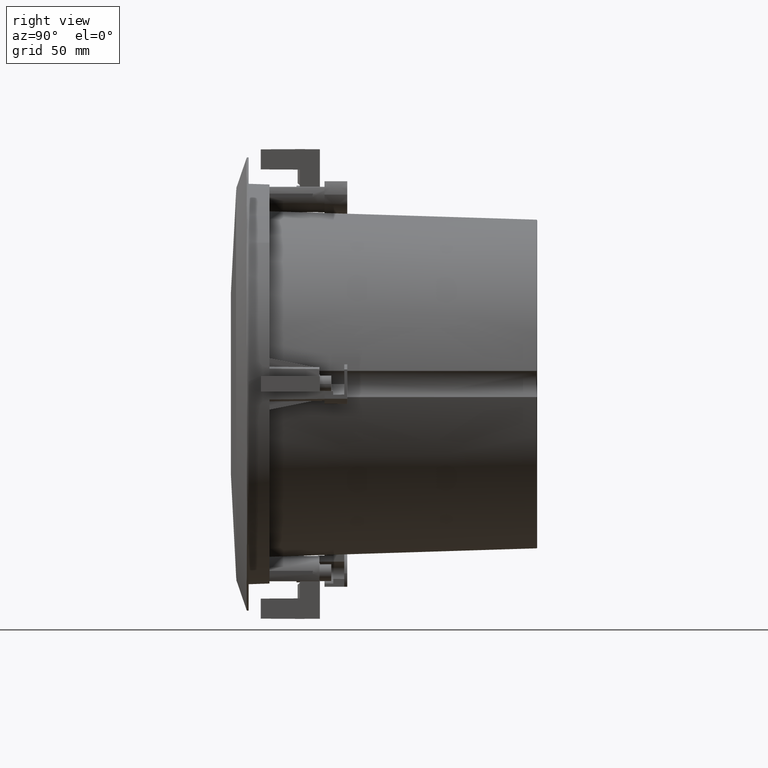
[diagram: clean part render]
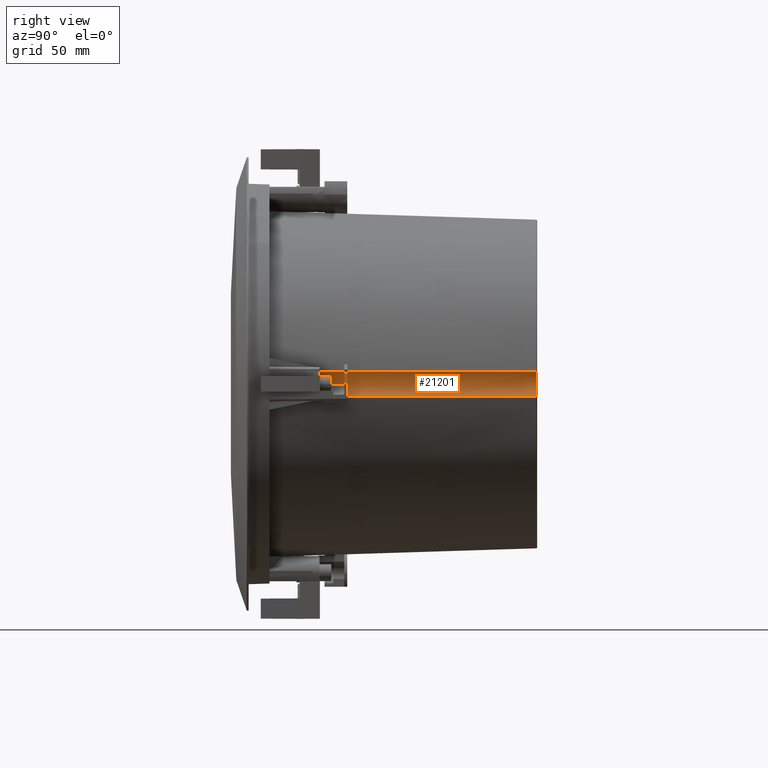
[diagram: same view with one face highlighted and labeled with its STEP entity id]
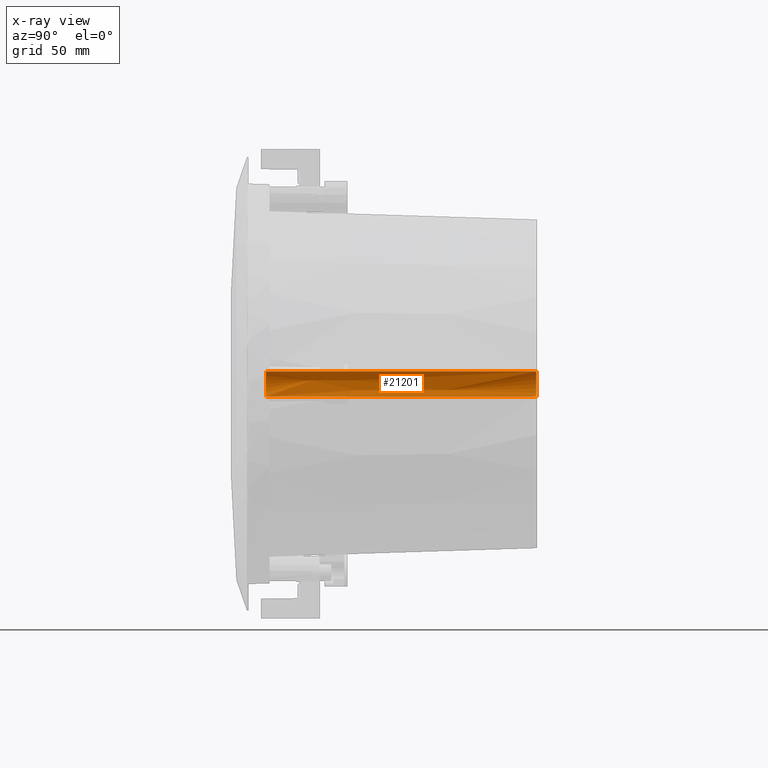
[diagram: x-ray of the same camera — body ghosted, the highlighted face saturated]
A machine part, right view. The second image highlights one B-rep face of the part: STEP entity #21201.
The next image is the same camera in x-ray: the body ghosted, the highlighted face saturated — about 0% of this face is hidden behind the body in this view.
In plain terms, the highlighted face is a freeform B-spline surface patch.
Its self-contained STEP definition (entity closure, byte-faithful):
#496 = CARTESIAN_POINT ( 'NONE',  ( 91.61020033156216869, 152.7154065100329774, 2.261585016979329232 ) ) ;
#604 = B_SPLINE_CURVE_WITH_KNOTS ( 'NONE', 3,
 ( #19908, #8225, #21805, #19688, #4255, #5992, #18011, #21694, #9489, #9700, #20126, #4723, #14866 ),
 .UNSPECIFIED., .F., .F.,
 ( 4, 3, 3, 3, 4 ),
 ( 0.0001665084307229406301, 0.02255475199520160304, 0.06766425598571328137, 0.1112266042839354097, 0.1547889525827407520 ),
 .UNSPECIFIED. ) ;
#662 = CARTESIAN_POINT ( 'NONE',  ( 97.67308154232000561, 49.25406530410000983, -7.738291418072973826 ) ) ;
#708 = CARTESIAN_POINT ( 'NONE',  ( 91.84352960335030502, 152.7150806227148792, 3.211551464318024074 ) ) ;
#779 = CARTESIAN_POINT ( 'NONE',  ( 92.80247191255000416, 101.9503593984900078, 2.979383873791024762 ) ) ;
#817 = CARTESIAN_POINT ( 'NONE',  ( 91.40548712608965332, 152.7156864829483709, -0.6566585150195035636 ) ) ;
#938 = CARTESIAN_POINT ( 'NONE',  ( 92.55485975404567967, 152.7140838114911219, -5.031309834028076189 ) ) ;
#1020 = CARTESIAN_POINT ( 'NONE',  ( 97.67308154232000561, 49.25406530410000983, 7.738291418073024452 ) ) ;
#1136 = CARTESIAN_POINT ( 'NONE',  ( 98.21988781266999524, -3.578109784699995188, 6.530533994243025830 ) ) ;
#1353 = CARTESIAN_POINT ( 'NONE',  ( 96.56066845319999459, 49.21910631440000117, 6.530533994243025830 ) ) ;
#1379 = CARTESIAN_POINT ( 'NONE',  ( 98.50015031252893039, -1.999999999999998224, -6.791984068913819783 ) ) ;
#1409 = B_SPLINE_CURVE_WITH_KNOTS ( 'NONE', 3,
 ( #5709, #14369, #13019, #2625, #938, #16152, #14272, #17612, #4099, #2206, #9096, #817, #18066, #16263, #21427, #496, #10891, #708, #7431, #19425, #21095, #5928, #12564, #12896 ),
 .UNSPECIFIED., .F., .F.,
 ( 4, 2, 2, 2, 2, 2, 2, 2, 2, 2, 2, 4 ),
 ( 0.0000000000000000000, 0.001955157051963219653, 0.002932735577944819289, 0.003910314103926418490, 0.005865471155889617760, 0.006843049681871213492, 0.007820628207852807490, 0.009775785259815998954, 0.01075336378579759035, 0.01173094231177918521, 0.01368609936374238188, 0.01564125641570557682 ),
 .UNSPECIFIED. ) ;
#2206 = CARTESIAN_POINT ( 'NONE',  ( 91.50186528906206718, 152.7155554708455156, -1.627899822645950234 ) ) ;
#2389 = VERTEX_POINT ( 'NONE', #10145 ) ;
#2406 = CARTESIAN_POINT ( 'NONE',  ( 98.09784348374836327, 21.78334706653837571, 7.234101782113029344 ) ) ;
#2475 = CARTESIAN_POINT ( 'NONE',  ( 96.12091063152000459, -3.644072799999981349, 2.979383873791025206 ) ) ;
#2509 = CARTESIAN_POINT ( 'NONE',  ( 98.40910030451733803, 11.90465003566235147, 7.235084474806017241 ) ) ;
#2526 = CARTESIAN_POINT ( 'NONE',  ( 97.81712472956719751, -1.999999999999994449, -5.792756148791532667 ) ) ;
#2618 = CARTESIAN_POINT ( 'NONE',  ( 98.84195815477887948, -1.833574155497091906, 7.236445405639725159 ) ) ;
#2620 = EDGE_CURVE ( 'NONE', #12341, #4914, #9169, .T. ) ;
#2625 = CARTESIAN_POINT ( 'NONE',  ( 92.70400841356688204, 152.7138793473495184, -5.322021540651709515 ) ) ;
#2632 = CARTESIAN_POINT ( 'NONE',  ( 98.50015031252895881, -2.000000000000085265, 6.791984068913894390 ) ) ;
#2637 = CARTESIAN_POINT ( 'NONE',  ( 93.97205915169993773, 152.7121603797918112, -7.220450181294416403 ) ) ;
#2697 = CARTESIAN_POINT ( 'NONE',  ( 94.90144909370999926, 102.0163224137999975, -6.530533994242975204 ) ) ;
#2774 = ORIENTED_EDGE ( 'NONE', *, *, #21540, .T. ) ;
#4087 = CARTESIAN_POINT ( 'NONE',  ( 96.56066715394007360, 70.56789930491493124, 7.229149573033296861 ) ) ;
#4099 = CARTESIAN_POINT ( 'NONE',  ( 91.66558561309022934, 152.7153303457702691, -2.584280068617713866 ) ) ;
#4166 = ORIENTED_EDGE ( 'NONE', *, *, #12050, .F. ) ;
#4255 = CARTESIAN_POINT ( 'NONE',  ( 97.66336506333180978, 35.57260761802165661, -7.232719921373375271 ) ) ;
#4319 = CARTESIAN_POINT ( 'NONE',  ( 97.25495336390214618, -2.000000000000003553, 4.716745304721277954 ) ) ;
#4381 = CARTESIAN_POINT ( 'NONE',  ( 99.33230090179999650, -3.543150795000005182, -7.738291418072973826 ) ) ;
#4521 = CARTESIAN_POINT ( 'NONE',  ( 99.33230090179999650, -3.543150795000005182, 7.738291418073024452 ) ) ;
#4682 = EDGE_CURVE ( 'NONE', #2389, #17960, #18431, .T. ) ;
#4723 = CARTESIAN_POINT ( 'NONE',  ( 94.42945540695139073, 138.1985833456275827, -7.222026153415281868 ) ) ;
#4780 = CARTESIAN_POINT ( 'NONE',  ( 98.73511597633478232, -1.934916668850658272, -7.100934499089745167 ) ) ;
#4914 = VERTEX_POINT ( 'NONE', #17814 ) ;
#5709 = CARTESIAN_POINT ( 'NONE',  ( 93.97205915169993773, 152.7121603797918112, -7.220450181294416403 ) ) ;
#5928 = CARTESIAN_POINT ( 'NONE',  ( 93.18483717688505408, 152.7132242608394108, 6.169193321148541465 ) ) ;
#5992 = CARTESIAN_POINT ( 'NONE',  ( 97.18980920213068941, 50.60164999530178420, -7.231196318516961874 ) ) ;
#6031 = CARTESIAN_POINT ( 'NONE',  ( 94.68250710069365539, 130.1686004264556971, 7.222880669290041133 ) ) ;
#6049 = CARTESIAN_POINT ( 'NONE',  ( 96.25368533407322502, -2.000000000000002665, 0.6106886100770010373 ) ) ;
#6108 = CARTESIAN_POINT ( 'NONE',  ( 98.21988781266999524, -3.578109784699995188, -6.530533994242975204 ) ) ;
#6208 = VERTEX_POINT ( 'NONE', #8104 ) ;
#6225 = CARTESIAN_POINT ( 'NONE',  ( 96.12091063152000459, -3.644072799999981349, -2.979383873790975024 ) ) ;
#6437 = VERTEX_POINT ( 'NONE', #2637 ) ;
#6536 = CARTESIAN_POINT ( 'NONE',  ( 98.84195815477896474, -1.833574155497175173, -7.236445405639683415 ) ) ;
#6940 = ORIENTED_EDGE ( 'NONE', *, *, #2620, .T. ) ;
#7431 = CARTESIAN_POINT ( 'NONE',  ( 91.94092968283385403, 152.7149413132343341, 3.527012995620613545 ) ) ;
#7518 = CARTESIAN_POINT ( 'NONE',  ( 97.78657966677532443, 31.66204387610375193, 7.233110224043736380 ) ) ;
#7688 = CARTESIAN_POINT ( 'NONE',  ( 91.14325255306999907, 154.7475754975220070, 2.979383873791024318 ) ) ;
#7737 = CARTESIAN_POINT ( 'NONE',  ( 96.31361733670034653, -2.000000000000000444, -1.216504831620765614 ) ) ;
#7816 = CARTESIAN_POINT ( 'NONE',  ( 96.01386218284000051, 102.0512814034899947, 7.738291418073024452 ) ) ;
#7953 = ORIENTED_EDGE ( 'NONE', *, *, #15538, .T. ) ;
#8104 = CARTESIAN_POINT ( 'NONE',  ( 98.50015031252895881, -2.000000000000085265, 6.791984068913894390 ) ) ;
#8225 = CARTESIAN_POINT ( 'NONE',  ( 98.60694427350189528, 5.625472263374204474, -7.235709577892789568 ) ) ;
#8628 = CARTESIAN_POINT ( 'NONE',  ( 98.61879915482280978, -1.987893263490174700, 6.950150110547823168 ) ) ;
#9096 = CARTESIAN_POINT ( 'NONE',  ( 91.46070347580045734, 152.7156114962589868, -1.306146730436927417 ) ) ;
#9169 = B_SPLINE_CURVE_WITH_KNOTS ( 'NONE', 3,
 ( #10997, #18054, #13119, #6031, #16142, #9518, #14461, #4087, #9747, #19531, #7518, #2406, #2509, #9633, #9421, #2618 ),
 .UNSPECIFIED., .F., .F.,
 ( 4, 3, 3, 3, 3, 4 ),
 ( 0.0000000000000000000, 0.02255475199520405247, 0.06766425598573366784, 0.1112266042839754610, 0.1408774024388060597, 0.1546224441519889747 ),
 .UNSPECIFIED. ) ;
#9421 = CARTESIAN_POINT ( 'NONE',  ( 98.69767369619560782, 2.745833955402894766, 7.235993651439066809 ) ) ;
#9424 = ORIENTED_EDGE ( 'NONE', *, *, #21030, .T. ) ;
#9436 = CARTESIAN_POINT ( 'NONE',  ( 97.02847832391098848, -2.000000000000002665, -4.153033228652599718 ) ) ;
#9489 = CARTESIAN_POINT ( 'NONE',  ( 95.80155983029986544, 94.65784957379511866, -7.226646722820636803 ) ) ;
#9518 = CARTESIAN_POINT ( 'NONE',  ( 95.62973490745297056, 100.1105193452269049, 7.226075344383867893 ) ) ;
#9540 = CARTESIAN_POINT ( 'NONE',  ( 96.25358773396848733, -2.000000000000002220, -0.3034862045923818474 ) ) ;
#9633 = CARTESIAN_POINT ( 'NONE',  ( 98.55338775211468771, 7.325242019314006647, 7.235540015732296659 ) ) ;
#9700 = CARTESIAN_POINT ( 'NONE',  ( 95.34419717870008526, 109.1714276713287290, -7.225113512980952279 ) ) ;
#9747 = CARTESIAN_POINT ( 'NONE',  ( 97.01799566112921980, 56.05432012686691934, 7.230639395304131689 ) ) ;
#10145 = CARTESIAN_POINT ( 'NONE',  ( 98.50015031252893039, -1.999999999999998224, -6.791984068913819783 ) ) ;
#10196 = CARTESIAN_POINT ( 'NONE',  ( 98.79228400043820102, -1.894014590332834258, 7.173605518183893359 ) ) ;
#10891 = CARTESIAN_POINT ( 'NONE',  ( 91.67849112168364911, 152.7153120402369098, 2.579547459051716451 ) ) ;
#10997 = CARTESIAN_POINT ( 'NONE',  ( 93.97205915169993773, 152.7121603797918112, 7.220450181294447489 ) ) ;
#11070 = CARTESIAN_POINT ( 'NONE',  ( 94.35464282335999542, 154.8484975025249923, -7.738291418072973826 ) ) ;
#11220 = CARTESIAN_POINT ( 'NONE',  ( 98.13535155203022953, -2.000000000000002665, 6.300612802584741878 ) ) ;
#11333 = CARTESIAN_POINT ( 'NONE',  ( 96.34940250375261428, -1.999999999999997780, -1.517224606802967113 ) ) ;
#11435 = CARTESIAN_POINT ( 'NONE',  ( 96.64546701865899081, -1.999999999999999556, 2.995492485011314709 ) ) ;
#11998 = CARTESIAN_POINT ( 'NONE',  ( 98.50015031252895881, -2.000000000000085265, 6.791984068913894390 ) ) ;
#12050 = EDGE_CURVE ( 'NONE', #2389, #6208, #20937, .T. ) ;
#12341 = VERTEX_POINT ( 'NONE', #18808 ) ;
#12564 = CARTESIAN_POINT ( 'NONE',  ( 93.55573424116423098, 152.7127244389219527, 6.711350121103005328 ) ) ;
#12896 = CARTESIAN_POINT ( 'NONE',  ( 93.97205915169993773, 152.7121603797918112, 7.220450181294447489 ) ) ;
#12900 = CARTESIAN_POINT ( 'NONE',  ( 96.30135731425872336, -1.999999999999997780, 1.213694500837114498 ) ) ;
#12974 = B_SPLINE_SURFACE_WITH_KNOTS ( 'NONE', 3, 3, ( 
 ( #4381, #662, #14757, #11070 ),
 ( #6108, #19800, #2697, #17903 ),
 ( #6225, #21273, #13092, #19920 ),
 ( #2475, #16221, #779, #7688 ),
 ( #1136, #1353, #13216, #19817 ),
 ( #4521, #1020, #7816, #18489 ) ),
 .UNSPECIFIED., .F., .F., .F.,
 ( 4, 1, 1, 4 ),
 ( 4, 4 ),
 ( 0.0000000000000000000, 0.2895366929247100152, 0.7104633070752900403, 1.000000000000000000 ),
 ( 0.0000000000000000000, 1.000000000000000000 ),
 .UNSPECIFIED. ) ;
#13019 = CARTESIAN_POINT ( 'NONE',  ( 93.18683004423230898, 152.7132215506434250, -6.172592179361067188 ) ) ;
#13029 = CARTESIAN_POINT ( 'NONE',  ( 97.81382768245995862, -2.000000000000003997, 5.787047042495831128 ) ) ;
#13092 = CARTESIAN_POINT ( 'NONE',  ( 92.80247191255000416, 101.9503593984900078, -2.979383873790975468 ) ) ;
#13119 = CARTESIAN_POINT ( 'NONE',  ( 94.44569564927066097, 137.6831205543294629, 7.222076274675029772 ) ) ;
#13128 = CARTESIAN_POINT ( 'NONE',  ( 98.55965239024345692, -2.000000000000000888, -6.872131301968617656 ) ) ;
#13216 = CARTESIAN_POINT ( 'NONE',  ( 94.90144909370999926, 102.0163224137999975, 6.530533994243025830 ) ) ;
#13243 = CARTESIAN_POINT ( 'NONE',  ( 96.63351597286846584, -1.999999999999999112, -2.999592067194110978 ) ) ;
#14272 = CARTESIAN_POINT ( 'NONE',  ( 92.15670663614751845, 152.7146363208628657, -4.130082909688709947 ) ) ;
#14328 = CARTESIAN_POINT ( 'NONE',  ( 98.84195815477887948, -1.833574155497091906, 7.236445405639725159 ) ) ;
#14369 = CARTESIAN_POINT ( 'NONE',  ( 93.55552934899471040, 152.7127247165207677, -6.711099570119332114 ) ) ;
#14461 = CARTESIAN_POINT ( 'NONE',  ( 96.10332253197962871, 85.08147797301039361, 7.227639278439036197 ) ) ;
#14539 = FACE_OUTER_BOUND ( 'NONE', #15389, .T. ) ;
#14595 = CARTESIAN_POINT ( 'NONE',  ( 96.26568579317962815, -2.000000000000000888, -0.6102939505696712841 ) ) ;
#14757 = CARTESIAN_POINT ( 'NONE',  ( 96.01386218284000051, 102.0512814034899947, -7.738291418072973826 ) ) ;
#14804 = CARTESIAN_POINT ( 'NONE',  ( 98.79227359387421359, -1.894027252395562577, -7.173592353444174563 ) ) ;
#14866 = CARTESIAN_POINT ( 'NONE',  ( 93.97205915169993773, 152.7121603797918112, -7.220450181294416403 ) ) ;
#15252 = CARTESIAN_POINT ( 'NONE',  ( 98.61870412798201357, -1.987875033190595220, -6.950021680120757495 ) ) ;
#15389 = EDGE_LOOP ( 'NONE', ( #4166, #20981, #2774, #9424, #6940, #7953 ) ) ;
#15487 = CARTESIAN_POINT ( 'NONE',  ( 98.55963534278346572, -1.999999999999892530, 6.872108339631928686 ) ) ;
#15538 = EDGE_CURVE ( 'NONE', #4914, #6208, #16834, .T. ) ;
#16142 = CARTESIAN_POINT ( 'NONE',  ( 95.15613000354029793, 115.1395601706879859, 7.224489458520065632 ) ) ;
#16152 = CARTESIAN_POINT ( 'NONE',  ( 92.28096815811639431, 152.7144626206500106, -4.435009048636267437 ) ) ;
#16221 = CARTESIAN_POINT ( 'NONE',  ( 94.46169127203999949, 49.15314329910000168, 2.979383873791024762 ) ) ;
#16263 = CARTESIAN_POINT ( 'NONE',  ( 91.39148995573999912, 152.7157053705159626, 0.6548608234850543663 ) ) ;
#16271 = CARTESIAN_POINT ( 'NONE',  ( 96.49192171967723652, -1.999999999999998224, -2.412286373329557865 ) ) ;
#16602 = CARTESIAN_POINT ( 'NONE',  ( 96.72951088223101124, -2.000000000000003553, 3.290064076464328746 ) ) ;
#16834 = B_SPLINE_CURVE_WITH_KNOTS ( 'NONE', 3,
 ( #14328, #10196, #17055, #8628, #15487, #11998 ),
 .UNSPECIFIED., .F., .F.,
 ( 4, 2, 4 ),
 ( 0.0000000000000000000, 0.0002964239864124918670, 0.0005928479728249837341 ),
 .UNSPECIFIED. ) ;
#17055 = CARTESIAN_POINT ( 'NONE',  ( 98.73571890417115071, -1.934580555370217780, 7.101710844734398620 ) ) ;
#17612 = CARTESIAN_POINT ( 'NONE',  ( 91.82810783996436044, 152.7151008542433601, -3.210088031936233488 ) ) ;
#17814 = CARTESIAN_POINT ( 'NONE',  ( 98.84195815477887948, -1.833574155497091906, 7.236445405639725159 ) ) ;
#17903 = CARTESIAN_POINT ( 'NONE',  ( 93.24222973422999416, 154.8135385128360042, -6.530533994242976092 ) ) ;
#17950 = CARTESIAN_POINT ( 'NONE',  ( 98.13826500591953561, -1.999999999999998224, -6.304537123832401946 ) ) ;
#17960 = VERTEX_POINT ( 'NONE', #6536 ) ;
#18011 = CARTESIAN_POINT ( 'NONE',  ( 96.71623635988929379, 65.63069183526111772, -7.229651157749048096 ) ) ;
#18054 = CARTESIAN_POINT ( 'NONE',  ( 94.20887969750658897, 145.1976405397708163, 7.221266153383330000 ) ) ;
#18066 = CARTESIAN_POINT ( 'NONE',  ( 91.39147994732816471, 152.7157053840494427, -0.3272530609955939807 ) ) ;
#18192 = CARTESIAN_POINT ( 'NONE',  ( 97.39669202085229927, -1.999999999999994893, -4.988487989167953884 ) ) ;
#18297 = CARTESIAN_POINT ( 'NONE',  ( 96.44343358023121482, -1.999999999999997780, 2.108651340126347584 ) ) ;
#18415 = CARTESIAN_POINT ( 'NONE',  ( 97.26682418793953389, -2.000000000000002665, -4.714261257659242865 ) ) ;
#18431 = B_SPLINE_CURVE_WITH_KNOTS ( 'NONE', 3,
 ( #1379, #13128, #15252, #4780, #14804, #21850 ),
 .UNSPECIFIED., .F., .F.,
 ( 4, 2, 4 ),
 ( 8.673617379884035472E-19, 0.0002951741134250678847, 0.0005903482268501349019 ),
 .UNSPECIFIED. ) ;
#18489 = CARTESIAN_POINT ( 'NONE',  ( 94.35464282335999542, 154.8484975025249923, 7.738291418073024452 ) ) ;
#18808 = CARTESIAN_POINT ( 'NONE',  ( 93.97205915169993773, 152.7121603797918112, 7.220450181294447489 ) ) ;
#19425 = CARTESIAN_POINT ( 'NONE',  ( 92.27202857656862989, 152.7144733894569413, 4.450791755817354201 ) ) ;
#19531 = CARTESIAN_POINT ( 'NONE',  ( 97.47530866804748939, 41.54074045844768648, 7.232109556161224972 ) ) ;
#19688 = CARTESIAN_POINT ( 'NONE',  ( 98.13690460963911733, 20.54356472464405314, -7.234222844544888176 ) ) ;
#19740 = CARTESIAN_POINT ( 'NONE',  ( 97.01758593039343737, -2.000000000000001776, 4.160018037926400680 ) ) ;
#19800 = CARTESIAN_POINT ( 'NONE',  ( 96.56066845319999459, 49.21910631440000117, -6.530533994242975204 ) ) ;
#19817 = CARTESIAN_POINT ( 'NONE',  ( 93.24222973422999416, 154.8135385128360042, 6.530533994243024942 ) ) ;
#19908 = CARTESIAN_POINT ( 'NONE',  ( 98.84195815477896474, -1.833574155497175173, -7.236445405639683415 ) ) ;
#19920 = CARTESIAN_POINT ( 'NONE',  ( 91.14325255306999907, 154.7475754975220070, -2.979383873790975912 ) ) ;
#19972 = CARTESIAN_POINT ( 'NONE',  ( 96.91999661892103290, -2.000000000000000000, -3.865596188540638689 ) ) ;
#20073 = CARTESIAN_POINT ( 'NONE',  ( 96.50262823027863135, -1.999999999999999112, 2.405368201256846472 ) ) ;
#20126 = CARTESIAN_POINT ( 'NONE',  ( 94.88683452709423705, 123.6850057690553371, -7.223580303141247327 ) ) ;
#20937 = B_SPLINE_CURVE_WITH_KNOTS ( 'NONE', 3,
 ( #21435, #17950, #2526, #18192, #18415, #9436, #19972, #13243, #16271, #11333, #7737, #14595, #9540, #6049, #12900, #18297, #20073, #11435, #16602, #19740, #4319, #13029, #11220, #2632 ),
 .UNSPECIFIED., .F., .F.,
 ( 4, 2, 2, 2, 2, 2, 2, 2, 2, 2, 2, 4 ),
 ( 0.0007557911464979732725, 0.002567935093469660753, 0.003474007066955504819, 0.004380079040441348451, 0.006192222987413023572, 0.007098294960898861999, 0.008004366934384700427, 0.009816510881356375548, 0.01072258285484221571, 0.01162865482832805587, 0.01344079877529972579, 0.01525294272227139397 ),
 .UNSPECIFIED. ) ;
#20981 = ORIENTED_EDGE ( 'NONE', *, *, #4682, .T. ) ;
#21030 = EDGE_CURVE ( 'NONE', #6437, #12341, #1409, .T. ) ;
#21095 = CARTESIAN_POINT ( 'NONE',  ( 92.54409203383677607, 152.7140972224922280, 5.040190150888103737 ) ) ;
#21201 = ADVANCED_FACE ( 'NONE', ( #14539 ), #12974, .F. ) ;
#21273 = CARTESIAN_POINT ( 'NONE',  ( 94.46169127203999949, 49.15314329910000168, -2.979383873790975468 ) ) ;
#21427 = CARTESIAN_POINT ( 'NONE',  ( 91.44637378542832096, 152.7156317622949473, 1.302042272206926032 ) ) ;
#21435 = CARTESIAN_POINT ( 'NONE',  ( 98.50015031252893039, -1.999999999999998224, -6.791984068913819783 ) ) ;
#21540 = EDGE_CURVE ( 'NONE', #17960, #6437, #604, .T. ) ;
#21694 = CARTESIAN_POINT ( 'NONE',  ( 96.25890601321471252, 80.14427095505342891, -7.228158992560028473 ) ) ;
#21805 = CARTESIAN_POINT ( 'NONE',  ( 98.37192645120899215, 13.08451855758550586, -7.234968758532983379 ) ) ;
#21850 = CARTESIAN_POINT ( 'NONE',  ( 98.84195815477896474, -1.833574155497175173, -7.236445405639683415 ) ) ;